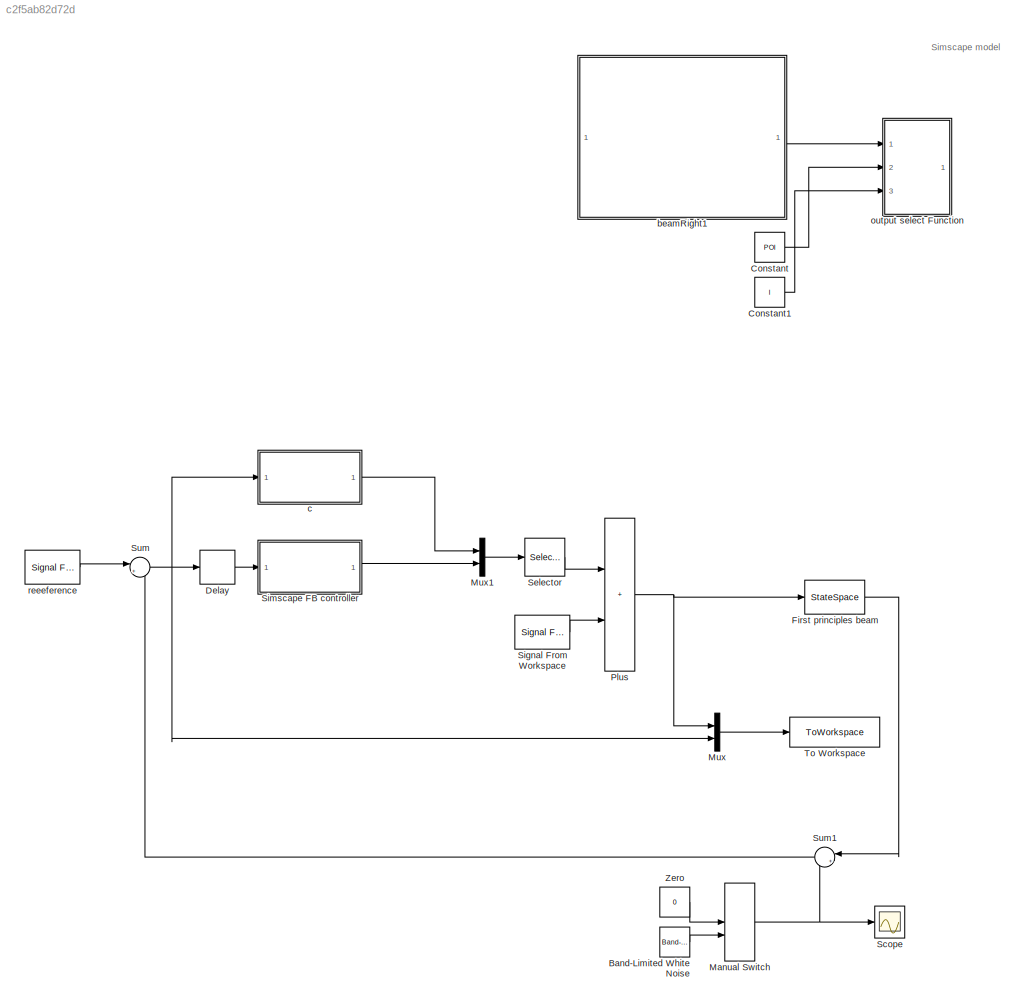
MODEL slx_c2f5ab82d72d
KIND model
CONFIG AbsTol = 5e-5
CONFIG EnableMultiTasking = off
CONFIG FixedStep = Ts
CONFIG MaxStep = auto
CONFIG MinStep = auto
CONFIG RelTol = 5e-2
CONFIG SampleTimeConstraint = Unconstrained
CONFIG SolverName = ode23t
CONFIG StartTime = 0.0
CONFIG StopTime = Tend
BLOCK [Reference] Band-Limited White Noise  REF=simulink/Sources/Band-Limited
White Noise
  Ports = [0, 1]
  SourceBlock = simulink/Sources/Band-Limited\nWhite Noise
  SourceProductBaseCode = SL
  SourceType = Band-Limited White Noise.
BLOCK [Constant] Constant
  Commented = on
  Value = POI
BLOCK [Constant] Constant1
  Commented = on
  Value = l
BLOCK [Delay] Delay
  DelayLength = 1
  InputPortMap = u0
  Ports = [1, 1]
BLOCK [StateSpace] First principles beam
  A = G.A
  B = G.B
  C = G.C
  D = G.D
  InitialCondition = 0
  Ports = [1, 1]
BLOCK [ManualSwitch] Manual Switch
BLOCK [Mux] Mux
  DisplayOption = bar
  Inputs = 2
  Ports = [2, 1]
BLOCK [Mux] Mux1
  DisplayOption = bar
  Inputs = 2
  Ports = [2, 1]
BLOCK [Sum] Plus
  IconShape = rectangular
  Ports = [2, 1]
BLOCK [Scope] Scope
  Floating = off
  NumInputPorts = 1
  Ports = [1]
  ScopeSpecificationString = Simulink.scopes.TimeScopeBlockCfg('CurrentConfiguration', extmgr.ConfigurationSet(extmgr.Configuration('Core','General UI',true),extmgr.Configuration('Core','Source UI',true),extmgr.Configuration('Sources','WiredSimulink',true),extmgr.Configuration('Visuals','Time Domain',true,'SerializedDisplays',{struct('MinYLimReal','-0.000014','MaxYLimReal','0.000011','YLabelReal','','MinYLimMag','0.000000','M...<+1397ch>
BLOCK [Selector] Selector
  IndexOptions = Index vector (dialog)
  Indices = [1]
  InputPortWidth = 2
  OutputSizes = 1
  Ports = [1, 1]
BLOCK [Reference] Signal From Workspace  REF=dspsrcs4/Signal From
Workspace
  Ports = [0, 1]
  SourceBlock = dspsrcs4/Signal From\nWorkspace
  SourceProductBaseCode = DS
  SourceType = Signal From Workspace
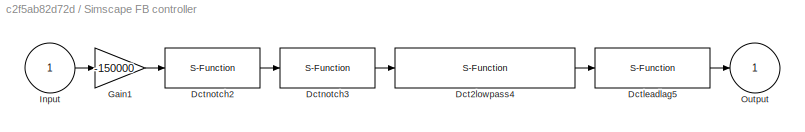
BLOCK [SubSystem] Simscape FB controller
  Ports = [1, 1]
  RequestExecContextInheritance = off
BLOCK [S-Function] Simscape FB controller/Dct2lowpass4
  EnableBusSupport = off
  FunctionName = dlowpass2
  Parameters = f_den, b_den, 0.001
  Ports = [1, 1]
  SFcnIsStateOwnerBlock = off
  SFunctionDeploymentMode = off
BLOCK [S-Function] Simscape FB controller/Dctleadlag5
  EnableBusSupport = off
  FunctionName = dleadlag
  Parameters = f_num, f_den, 0.001
  Ports = [1, 1]
  SFcnIsStateOwnerBlock = off
  SFunctionDeploymentMode = off
BLOCK [S-Function] Simscape FB controller/Dctnotch2
  EnableBusSupport = off
  FunctionName = dnotch
  Parameters = f_num, b_num, f_den, b_den, 0.001
  Ports = [1, 1]
  SFcnIsStateOwnerBlock = off
  SFunctionDeploymentMode = off
BLOCK [S-Function] Simscape FB controller/Dctnotch3
  EnableBusSupport = off
  FunctionName = dnotch
  Parameters = f_num, b_num, f_den, b_den, 0.001
  Ports = [1, 1]
  SFcnIsStateOwnerBlock = off
  SFunctionDeploymentMode = off
BLOCK [Gain] Simscape FB controller/Gain1
  Gain = -150000
BLOCK [Inport] Simscape FB controller/Input
BLOCK [Outport] Simscape FB controller/Output
BLOCK [Sum] Sum
  Inputs = |+-
  Ports = [2, 1]
BLOCK [Sum] Sum1
  Inputs = |++
  Ports = [2, 1]
BLOCK [ToWorkspace] To Workspace
  FixptAsFi = on
  MaxDataPoints = inf
  Ports = [1]
  SampleTime = Ts
  VariableName = simout
BLOCK [Constant] Zero
  OutDataTypeStr = Inherit: Inherit via back propagation
  Value = 0
BLOCK [ModelReference] beamRight1
  Commented = on
  ModelNameDialog = ModelFlexibleBeamPOIx.slx
  ModelReferenceVersion = 1.15
  Ports = [1, 1]
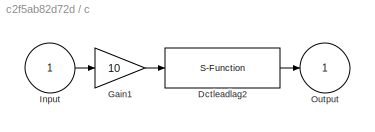
BLOCK [SubSystem] c
  Ports = [1, 1]
  RequestExecContextInheritance = off
BLOCK [S-Function] c/Dctleadlag2
  EnableBusSupport = off
  FunctionName = dleadlag
  Parameters = f_num, f_den, 0.001
  Ports = [1, 1]
  SFcnIsStateOwnerBlock = off
  SFunctionDeploymentMode = off
BLOCK [Gain] c/Gain1
  Gain = 10
BLOCK [Inport] c/Input
BLOCK [Outport] c/Output
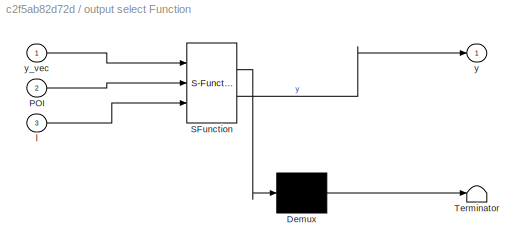
BLOCK [SubSystem] output select Function
  Commented = on
  ErrorFcn = Stateflow.Translate.translate
  PermitHierarchicalResolution = ExplicitOnly
  Ports = [3, 1]
  RequestExecContextInheritance = off
  SFBlockType = MATLAB Function
  TreatAsAtomicUnit = on
BLOCK [Demux] output select Function/ Demux 
  Outputs = 1
  Ports = [1, 1]
BLOCK [S-Function] output select Function/ SFunction 
  EnableBusSupport = on
  FunctionName = sf_sfun
  PortCounts = [3 2]
  Ports = [3, 2]
  SFcnIsStateOwnerBlock = off
  SFunctionDeploymentMode = off
  Tag = Stateflow S-Function 2
BLOCK [Terminator] output select Function/ Terminator 
BLOCK [Inport] output select Function/POI
  Port = 2
BLOCK [Inport] output select Function/l
  Port = 3
BLOCK [Outport] output select Function/y
BLOCK [Inport] output select Function/y_vec
BLOCK [Reference] reeeference  REF=dspsrcs4/Signal From
Workspace
  Ports = [0, 1]
  SourceBlock = dspsrcs4/Signal From\nWorkspace
  SourceProductBaseCode = DS
  SourceType = Signal From Workspace
ANNOTATION (root): Simscape model
LINE Band-Limited White Noise:1 -> Manual Switch:2
LINE Constant1:1 -> output select Function:3
LINE Constant:1 -> output select Function:2
LINE Delay:1 -> Simscape FB controller:1
LINE First principles beam:1 -> Sum1:1
NET Manual Switch:1 -> Scope:1, Sum1:2
LINE Mux1:1 -> Selector:1
LINE Mux:1 -> To Workspace:1
NET Plus:1 -> First principles beam:1, Mux:1
LINE Selector:1 -> Plus:1
LINE Signal From Workspace:1 -> Plus:2
LINE Simscape FB controller/Dct2lowpass4:1 -> Simscape FB controller/Dctleadlag5:1
LINE Simscape FB controller/Dctleadlag5:1 -> Simscape FB controller/Output:1
LINE Simscape FB controller/Dctnotch2:1 -> Simscape FB controller/Dctnotch3:1
LINE Simscape FB controller/Dctnotch3:1 -> Simscape FB controller/Dct2lowpass4:1
LINE Simscape FB controller/Gain1:1 -> Simscape FB controller/Dctnotch2:1
LINE Simscape FB controller/Input:1 -> Simscape FB controller/Gain1:1
LINE Simscape FB controller:1 -> Mux1:2
LINE Sum1:1 -> Sum:2
NET Sum:1 -> Delay:1, Mux:2, c:1
LINE Zero:1 -> Manual Switch:1
LINE beamRight1:1 -> output select Function:1
LINE c/Dctleadlag2:1 -> c/Output:1
LINE c/Gain1:1 -> c/Dctleadlag2:1
LINE c/Input:1 -> c/Gain1:1
LINE c:1 -> Mux1:1
LINE reeeference:1 -> Sum:1
note: NET lines group one-source signal fan-out (src -> all destinations, sorted); 1:1 wires keep LINE
CHART output select Function states=1 transitions=1
  STATE_LABEL 'eML_blk_kernel()'
  STATE_LABEL "SCRIPT:\nfunction y = fcn(y_vec,POI,l)\nif POI < l/2 && POI > 0 % left side poi\n    y = y_vec(4);\nelseif POI > l/2 && POI < l % right side poi\n    y = y_vec(5);\nelseif POI == l/2 % center poi\n    y = y_vec(2);\nelseif POI == 0 % left poi\n    y = y_vec(1);\nelseif POI == l % right poi\n    y = y_vec(3);\nelse\n    error('Not good POI measurement!')\nend\nend\n"
CHART  states=0 transitions=0
